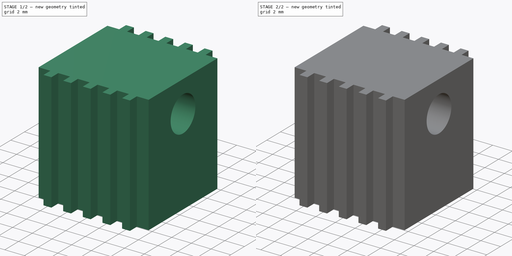
[diagram: build sequence overview — one tinted view per stage of 2, left to right]
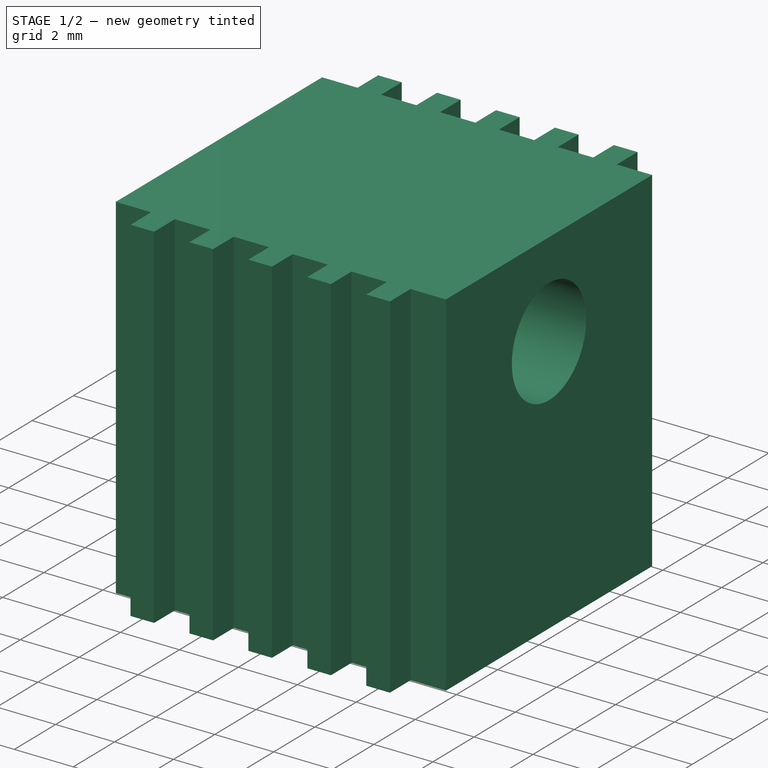
[diagram: stage 1 of 2 — iso view after this stage's code; geometry added in this stage tinted green]
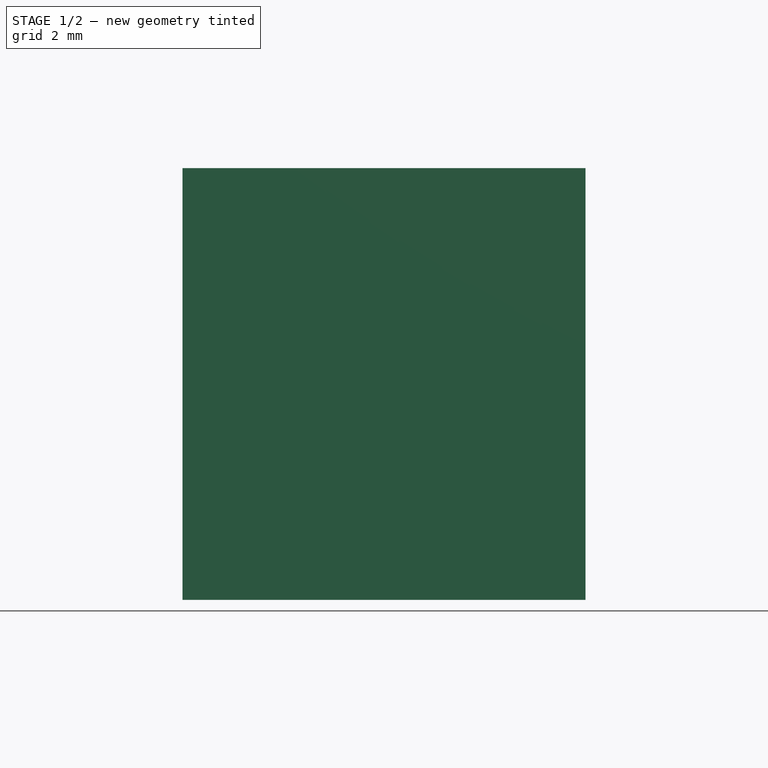
[diagram: stage 1 of 2 — front view after this stage's code; geometry added in this stage tinted green]
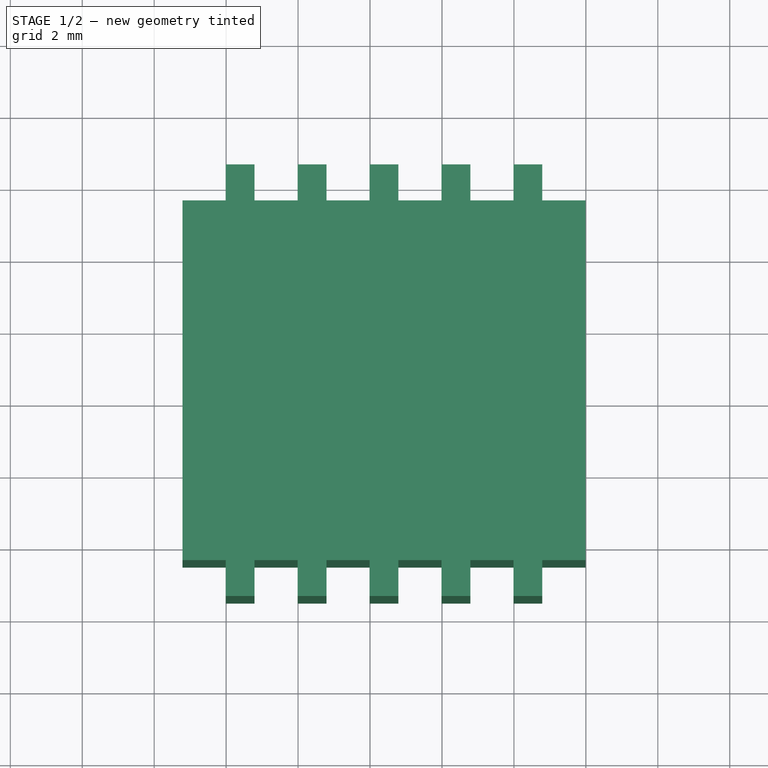
[diagram: stage 1 of 2 — top view after this stage's code; geometry added in this stage tinted green]
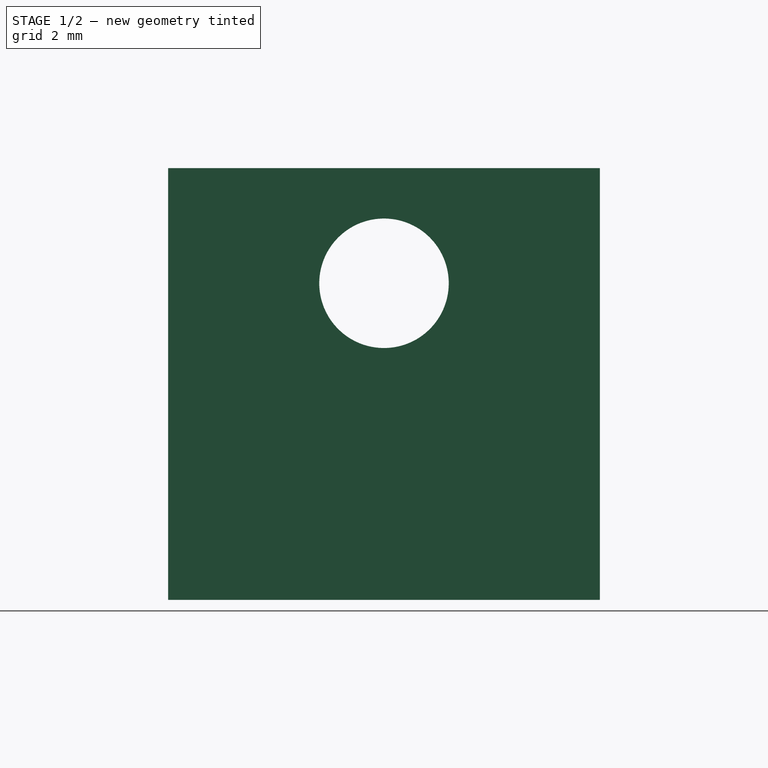
[diagram: stage 1 of 2 — right view after this stage's code; geometry added in this stage tinted green]
FCSTD DOCUMENT  (FreeCAD 0.16R6706 (Git))
Label: Regulador Correia Deslizante
License: All rights reserved
LicenseURL: http://en.wikipedia.org/wiki/All_rights_reserved
objects: Sketcher::SketchObject×3, PartDesign::Pocket×2, PartDesign::Pad×1
note: 9 computed .brp shape members not serialized (recipe doc carries the construction recipe); baked Part::Feature solids carry a one-line shape summary decoded from their .brp

FEATURE [Sketcher::SketchObject] Sketch
  sketch-geometry (44):
    g0: LineSegment StartX=-9.2116 StartY=11.5049 StartZ=0 EndX=-8.0116 EndY=11.5049 EndZ=0
    g1: LineSegment StartX=-8.0116 StartY=11.5049 StartZ=0 EndX=-8.0116 EndY=12.5049 EndZ=0
    g2: LineSegment StartX=-8.0116 StartY=12.5049 StartZ=0 EndX=-7.2116 EndY=12.5049 EndZ=0
    g3: LineSegment StartX=-7.2116 StartY=12.5049 StartZ=0 EndX=-7.2116 EndY=11.5049 EndZ=0
    g4: LineSegment StartX=-9.2116 StartY=1.50492 StartZ=0 EndX=-8.0116 EndY=1.50492 EndZ=0
    g5: LineSegment StartX=-8.0116 StartY=1.50492 StartZ=0 EndX=-8.0116 EndY=0.50492 EndZ=0
    g6: LineSegment StartX=-8.0116 StartY=0.50492 StartZ=0 EndX=-7.2116 EndY=0.50492 EndZ=0
    g7: LineSegment StartX=-7.2116 StartY=0.50492 StartZ=0 EndX=-7.2116 EndY=1.50492 EndZ=0
    g8: LineSegment StartX=-7.2116 StartY=11.5049 StartZ=0 EndX=-6.0116 EndY=11.5049 EndZ=0
    g9: LineSegment StartX=-6.0116 StartY=11.5049 StartZ=0 EndX=-6.0116 EndY=12.5049 EndZ=0
    g10: LineSegment StartX=-6.0116 StartY=12.5049 StartZ=0 EndX=-5.2116 EndY=12.5049 EndZ=0
    g11: LineSegment StartX=-5.2116 StartY=12.5049 StartZ=0 EndX=-5.2116 EndY=11.5049 EndZ=0
    g12: LineSegment StartX=-7.2116 StartY=1.50492 StartZ=0 EndX=-6.0116 EndY=1.50492 EndZ=0
    g13: LineSegment StartX=-6.0116 StartY=1.50492 StartZ=0 EndX=-6.0116 EndY=0.50492 EndZ=0
    g14: LineSegment StartX=-6.0116 StartY=0.50492 StartZ=0 EndX=-5.2116 EndY=0.50492 EndZ=0
    g15: LineSegment StartX=-5.2116 StartY=0.50492 StartZ=0 EndX=-5.2116 EndY=1.50492 EndZ=0
    g16: LineSegment StartX=-5.2116 StartY=11.5049 StartZ=0 EndX=-4.0116 EndY=11.5049 EndZ=0
    g17: LineSegment StartX=-4.0116 StartY=11.5049 StartZ=0 EndX=-4.0116 EndY=12.5049 EndZ=0
    g18: LineSegment StartX=-4.0116 StartY=12.5049 StartZ=0 EndX=-3.2116 EndY=12.5049 EndZ=0
    g19: LineSegment StartX=-3.2116 StartY=12.5049 StartZ=0 EndX=-3.2116 EndY=11.5049 EndZ=0
    g20: LineSegment StartX=-5.2116 StartY=1.50492 StartZ=0 EndX=-4.0116 EndY=1.50492 EndZ=0
    g21: LineSegment StartX=-4.0116 StartY=1.50492 StartZ=0 EndX=-4.0116 EndY=0.50492 EndZ=0
    g22: LineSegment StartX=-4.0116 StartY=0.50492 StartZ=0 EndX=-3.2116 EndY=0.50492 EndZ=0
    g23: LineSegment StartX=-3.2116 StartY=0.50492 StartZ=0 EndX=-3.2116 EndY=1.50492 EndZ=0
    g24: LineSegment StartX=-3.2116 StartY=11.5049 StartZ=0 EndX=-2.0116 EndY=11.5049 EndZ=0
    g25: LineSegment StartX=-2.0116 StartY=11.5049 StartZ=0 EndX=-2.0116 EndY=12.5049 EndZ=0
    g26: LineSegment StartX=-2.0116 StartY=12.5049 StartZ=0 EndX=-1.2116 EndY=12.5049 EndZ=0
    g27: LineSegment StartX=-1.2116 StartY=12.5049 StartZ=0 EndX=-1.2116 EndY=11.5049 EndZ=0
    g28: LineSegment StartX=-3.2116 StartY=1.50492 StartZ=0 EndX=-2.0116 EndY=1.50492 EndZ=0
    g29: LineSegment StartX=-2.0116 StartY=1.50492 StartZ=0 EndX=-2.0116 EndY=0.50492 EndZ=0
    g30: LineSegment StartX=-2.0116 StartY=0.50492 StartZ=0 EndX=-1.2116 EndY=0.50492 EndZ=0
    g31: LineSegment StartX=-1.2116 StartY=0.50492 StartZ=0 EndX=-1.2116 EndY=1.50492 EndZ=0
    g32: LineSegment StartX=-1.2116 StartY=11.5049 StartZ=0 EndX=-0.0116007 EndY=11.5049 EndZ=0
    g33: LineSegment StartX=-0.0116007 StartY=11.5049 StartZ=0 EndX=-0.0116007 EndY=12.5049 EndZ=0
    g34: LineSegment StartX=-0.0116007 StartY=12.5049 StartZ=0 EndX=0.788399 EndY=12.5049 EndZ=0
    g35: LineSegment StartX=0.788399 StartY=12.5049 StartZ=0 EndX=0.788399 EndY=11.5049 EndZ=0
    g36: LineSegment StartX=-1.2116 StartY=1.50492 StartZ=0 EndX=-0.0116007 EndY=1.50492 EndZ=0
    g37: LineSegment StartX=-0.0116007 StartY=1.50492 StartZ=0 EndX=-0.0116007 EndY=0.50492 EndZ=0
    g38: LineSegment StartX=-0.0116007 StartY=0.50492 StartZ=0 EndX=0.788399 EndY=0.50492 EndZ=0
    g39: LineSegment StartX=0.788399 StartY=0.50492 StartZ=0 EndX=0.788399 EndY=1.50492 EndZ=0
    g40: LineSegment StartX=0.788399 StartY=11.5049 StartZ=0 EndX=1.9884 EndY=11.5049 EndZ=0
    g41: LineSegment StartX=0.788399 StartY=1.50492 StartZ=0 EndX=1.9884 EndY=1.50492 EndZ=0
    g42: LineSegment StartX=-9.2116 StartY=11.5049 StartZ=0 EndX=-9.2116 EndY=1.50492 EndZ=0
    g43: LineSegment StartX=1.9884 StartY=11.5049 StartZ=0 EndX=1.9884 EndY=1.50492 EndZ=0
  constraints (130):
    c: Coincident(g0,g1)
    c: Coincident(g1,g2)
    c: Coincident(g2,g3)
    c: Horizontal(g0)
    c: Horizontal(g2)
    c: Vertical(g1)
    c: Vertical(g3)
    c: DistanceX(g0,g0) = 1.2
    c: DistanceX(g2,g2) = 0.8
    c: Equal(g1,g3)
    c: DistanceY(g1,g1) = 1
    c: Coincident(g4,g5)
    c: Coincident(g5,g6)
    c: Coincident(g6,g7)
    c: Horizontal(g4)
    c: Horizontal(g6)
    c: Vertical(g5)
    c: Vertical(g7)
    c: Equal(g0,g4)
    c: Equal(g2,g6)
    c: Equal(g1,g5)
    c: Equal(g5,g7)
    c: Coincident(g8,g9)
    c: Coincident(g9,g10)
    c: Coincident(g10,g11)
    c: Horizontal(g8)
    c: Horizontal(g10)
    c: Vertical(g9)
    c: Vertical(g11)
    c: Equal(g0,g8) = 1.2
    c: Equal(g2,g10) = 0.8
    c: Equal(g9,g11)
    c: Equal(g1,g9) = 1
    c: Coincident(g12,g13)
    c: Coincident(g13,g14)
    c: Coincident(g14,g15)
    c: Horizontal(g12)
    c: Horizontal(g14)
    c: Vertical(g13)
    c: Vertical(g15)
    c: Equal(g8,g12)
    c: Equal(g10,g14)
    c: Equal(g9,g13)
    c: Equal(g13,g15)
    c: Coincident(g16,g17)
    c: Coincident(g17,g18)
    c: Coincident(g18,g19)
    c: Horizontal(g16)
    c: Horizontal(g18)
    c: Vertical(g17)
    c: Vertical(g19)
    c: Equal(g0,g16) = 1.2
    c: Equal(g2,g18) = 0.8
    c: Equal(g17,g19)
    c: Equal(g1,g17) = 1
    c: Coincident(g20,g21)
    c: Coincident(g21,g22)
    c: Coincident(g22,g23)
    c: Horizontal(g20)
    c: Horizontal(g22)
    c: Vertical(g21)
    c: Vertical(g23)
    c: Equal(g16,g20)
    c: Equal(g18,g22)
    c: Equal(g17,g21)
    c: Equal(g21,g23)
    c: Coincident(g24,g25)
    c: Coincident(g25,g26)
    c: Coincident(g26,g27)
    c: Horizontal(g24)
    c: Horizontal(g26)
    c: Vertical(g25)
    c: Vertical(g27)
    c: Equal(g0,g24) = 1.2
    c: Equal(g2,g26) = 0.8
    c: Equal(g25,g27)
    c: Equal(g1,g25) = 1
    c: Coincident(g28,g29)
    c: Coincident(g29,g30)
    c: Coincident(g30,g31)
    c: Horizontal(g28)
    c: Horizontal(g30)
    c: Vertical(g29)
    c: Vertical(g31)
    c: Equal(g24,g28)
    c: Equal(g26,g30)
    c: Equal(g25,g29)
    c: Equal(g29,g31)
    c: Coincident(g32,g33)
    c: Coincident(g33,g34)
    c: Coincident(g34,g35)
    c: Horizontal(g32)
    c: Horizontal(g34)
    c: Vertical(g33)
    c: Vertical(g35)
    c: Equal(g0,g32) = 1.2
    c: Equal(g2,g34) = 0.8
    c: Equal(g33,g35)
    c: Equal(g1,g33) = 1
    c: Coincident(g36,g37)
    c: Coincident(g37,g38)
    c: Coincident(g38,g39)
    c: Horizontal(g36)
    c: Horizontal(g38)
    c: Vertical(g37)
    c: Vertical(g39)
    c: Equal(g32,g36)
    c: Equal(g34,g38)
    c: Equal(g33,g37)
    c: Equal(g37,g39)
    c: Horizontal(g40)
    c: Equal(g0,g40) = 1.2
    c: Horizontal(g41)
    c: Equal(g40,g41)
    c: Coincident(g3,g8)
    c: Coincident(g11,g16)
    c: Coincident(g19,g24)
    c: Coincident(g27,g32)
    c: Coincident(g35,g40)
    c: Coincident(g39,g41)
    c: Coincident(g31,g36)
    c: Coincident(g23,g28)
    c: Coincident(g15,g20)
    c: Coincident(g7,g12)
    c: Vertical(g42)
    c: Coincident(g0,g42)
    c: Coincident(g4,g42)
    c: DistanceY(g42,g42) = 10
    c: Coincident(g40,g43)
    c: Coincident(g41,g43)
FEATURE [PartDesign::Pad] Pad
  Length = 12
  Length2 = 100
  Sketch = -> Sketch
  Type = 0
FEATURE [Sketcher::SketchObject] Sketch001
  ExternalGeometry = -> [Pad]
  Placement = pos=(-9.2116,0,0) rot=(0.57735,-0.57735,-0.57735;2.0944rad)
  Support = -> Pad [Face80]
  sketch-geometry (2):
    g0: LineSegment [constr] StartX=-6.50492 StartY=12 StartZ=0 EndX=-6.50492 EndY=8.8 EndZ=0
    g1: Circle CenterX=-6.50492 CenterY=8.8 CenterZ=0 NormalX=0 NormalY=0 NormalZ=1 Radius=1.8
  constraints (5):
    c: Symmetric(g-3,g-3,g0)
    c: Vertical(g0)
    c: DistanceY(g0,g0) = 3.2
    c: Coincident(g1,g0)
    c: Radius(g1) = 1.8
FEATURE [PartDesign::Pocket] Pocket
  Length = 5
  Sketch = -> Sketch001
  Type = 1
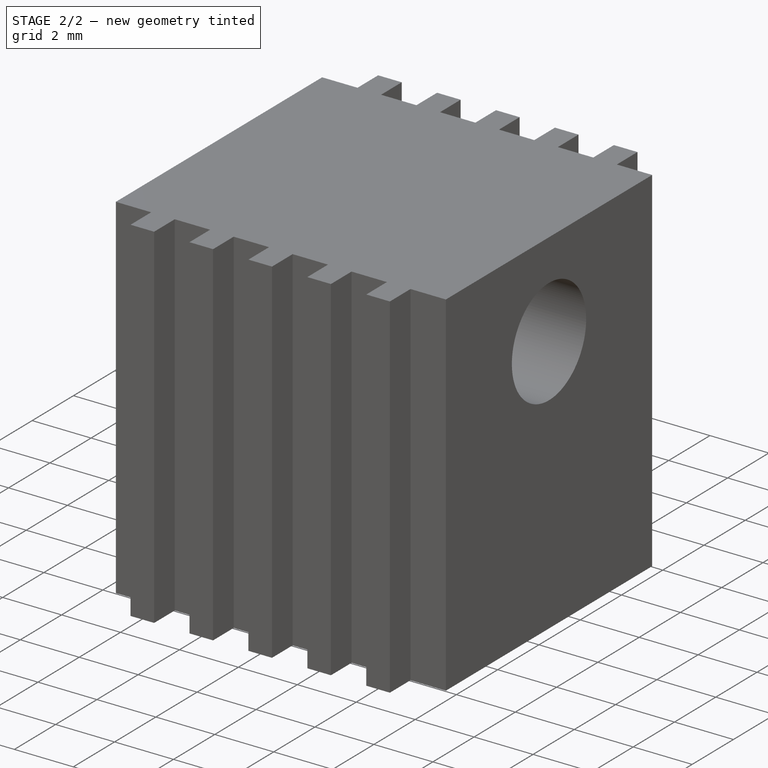
[diagram: stage 2 of 2 — iso view after this stage's code; geometry added in this stage tinted green]
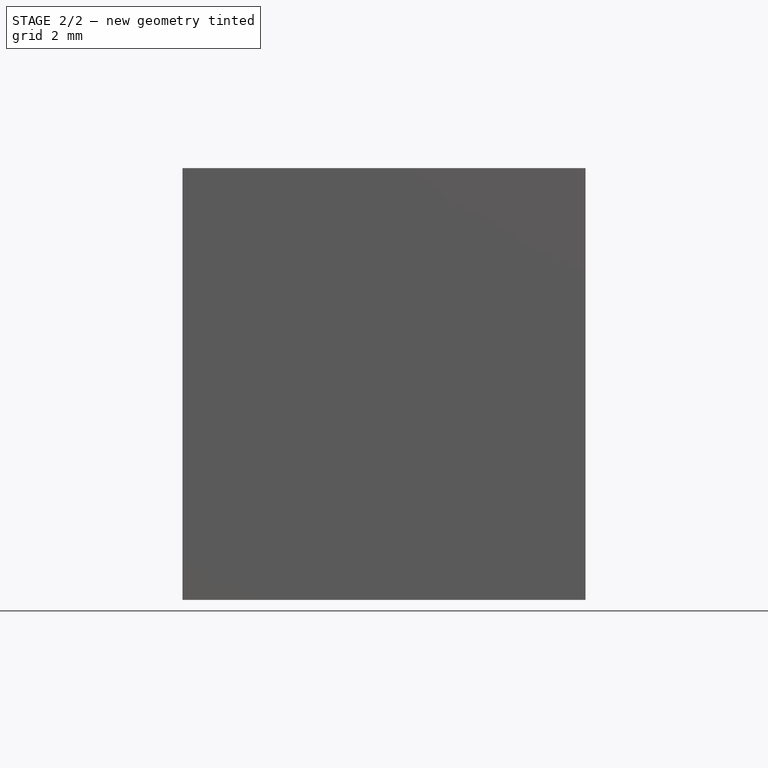
[diagram: stage 2 of 2 — front view after this stage's code; geometry added in this stage tinted green]
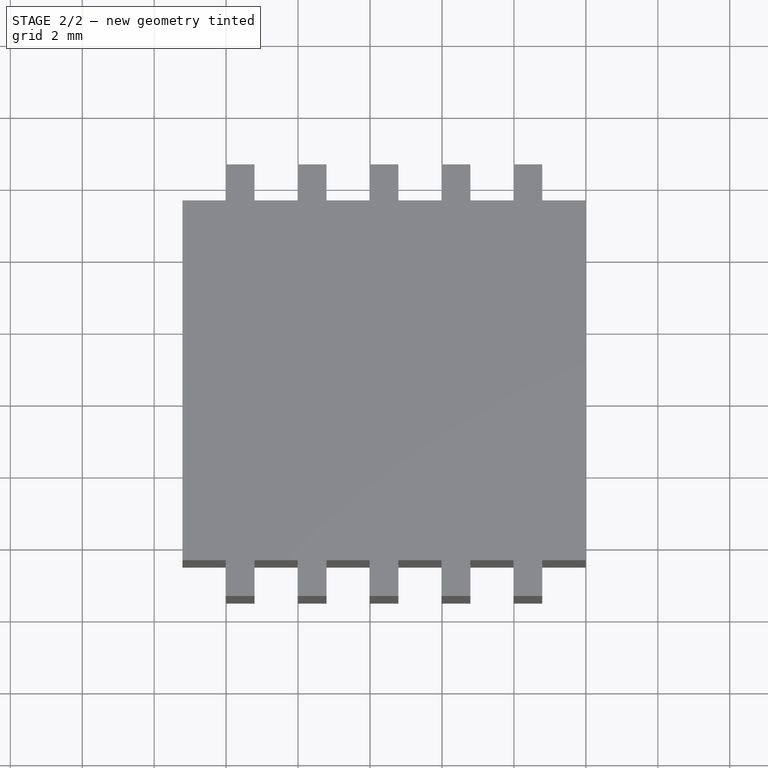
[diagram: stage 2 of 2 — top view after this stage's code; geometry added in this stage tinted green]
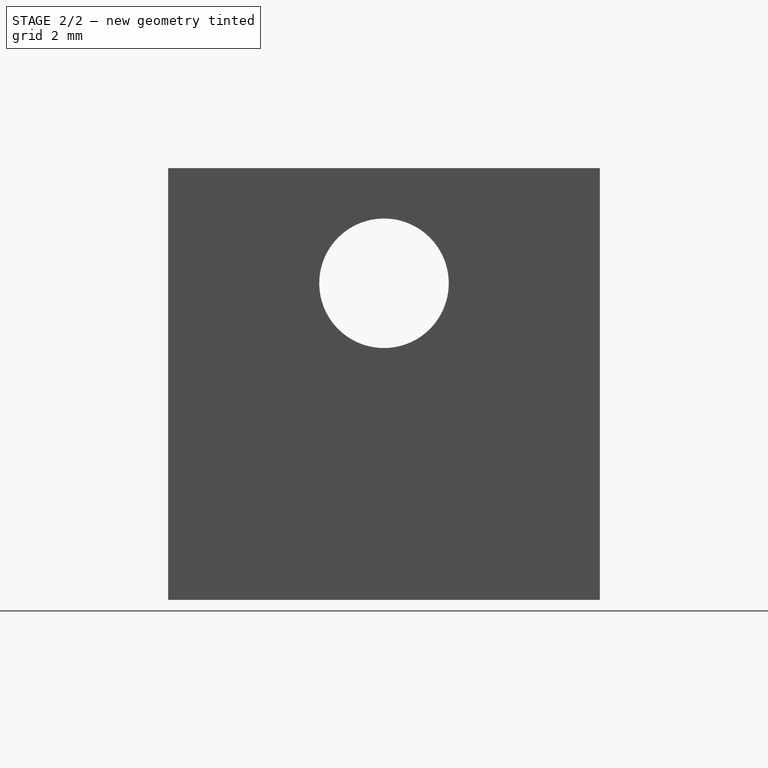
[diagram: stage 2 of 2 — right view after this stage's code; geometry added in this stage tinted green]
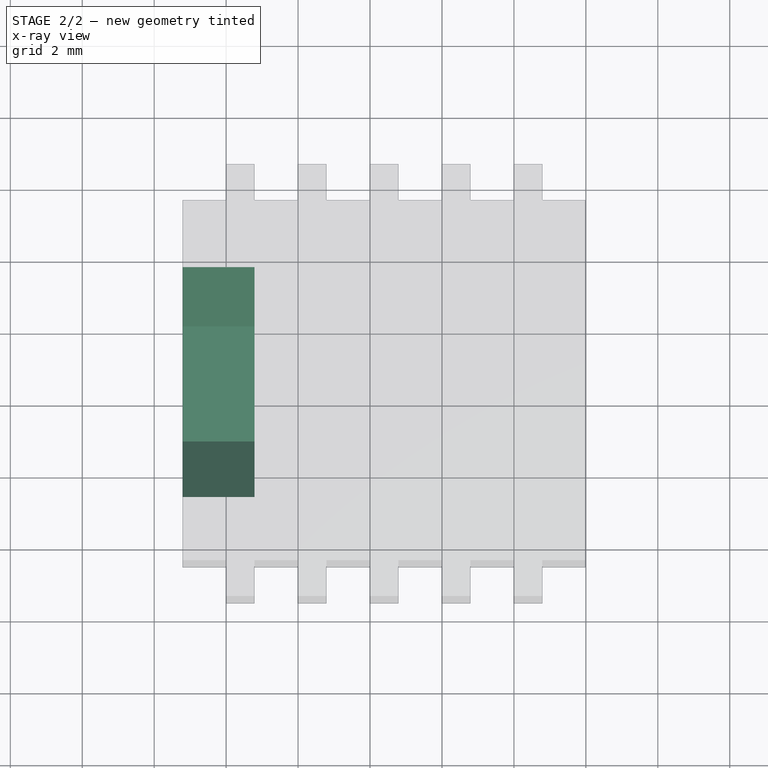
[diagram: stage 2 of 2 — x-ray composite at the top view; earlier geometry ghosted, this stage's added geometry solid]
FEATURE [Sketcher::SketchObject] Sketch002
  ExternalGeometry = -> [Pocket]
  Placement = pos=(-7.2116,0,0) rot=(0.57735,0.57735,0.57735;2.0944rad)
  Support = -> Pocket [Face45]
  sketch-geometry (8):
    g0: LineSegment [constr] StartX=6.50492 StartY=12 StartZ=0 EndX=6.50492 EndY=8.8 EndZ=0
    g1: LineSegment StartX=8.10492 StartY=6.02872 StartZ=0 EndX=9.70492 EndY=8.8 EndZ=0
    g2: LineSegment StartX=9.70492 StartY=8.8 StartZ=0 EndX=8.10492 EndY=11.5713 EndZ=0
    g3: LineSegment StartX=8.10492 StartY=11.5713 StartZ=0 EndX=4.90492 EndY=11.5713 EndZ=0
    g4: LineSegment StartX=4.90492 StartY=11.5713 StartZ=0 EndX=3.30492 EndY=8.8 EndZ=0
    g5: LineSegment StartX=3.30492 StartY=8.8 StartZ=0 EndX=4.90492 EndY=6.02872 EndZ=0
    g6: LineSegment StartX=4.90492 StartY=6.02872 StartZ=0 EndX=8.10492 EndY=6.02872 EndZ=0
    g7: Circle [constr] CenterX=6.50492 CenterY=8.8 CenterZ=0 NormalX=0 NormalY=0 NormalZ=1 Radius=3.2
  constraints (19):
    c: Vertical(g0)
    c: DistanceY(g0,g0) = 3.2
    c: Coincident(g1,g2)
    c: Coincident(g2,g3)
    c: Coincident(g3,g4)
    c: Coincident(g4,g5)
    c: Coincident(g5,g6)
    c: Coincident(g6,g1)
    c: Equal(g1, g2-g6) x5
    c: PointOnObject(g2,g7)
    c: PointOnObject(g3,g7)
    c: PointOnObject(g4,g7)
    c: PointOnObject(g5,g7)
    c: PointOnObject(g6,g7)
    c: Radius(g7) = 3.2
    c: Coincident(g0,g7)
    c: Perpendicular(g0,g3)
    c: PointOnObject(g1,g7)
    c: Symmetric(g-3,g-3,g0)
FEATURE [PartDesign::Pocket] Pocket001
  Length = 3
  Sketch = -> Sketch002
  Type = 0
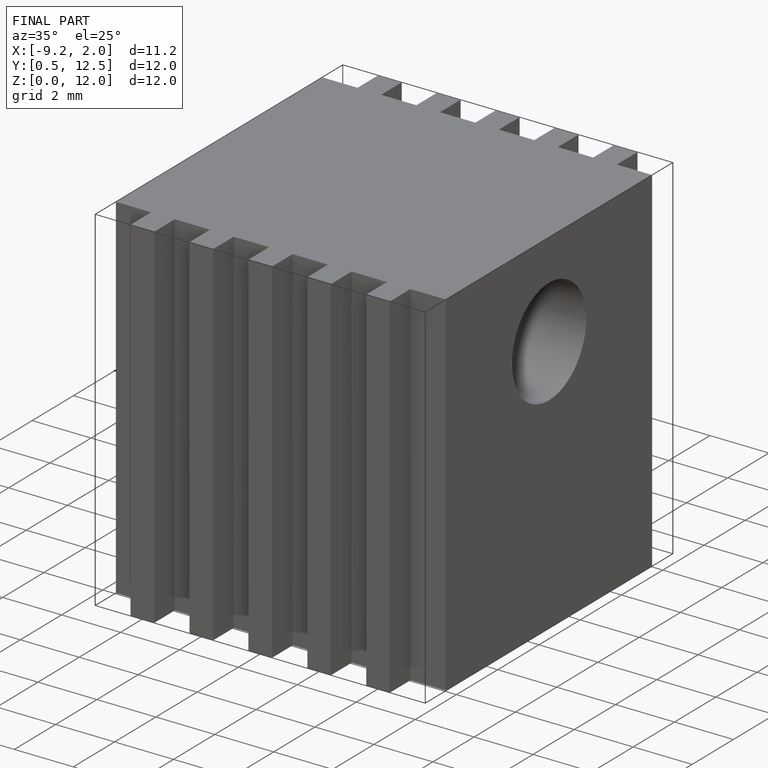
[diagram: finished part — iso view with bounding-box wireframe]
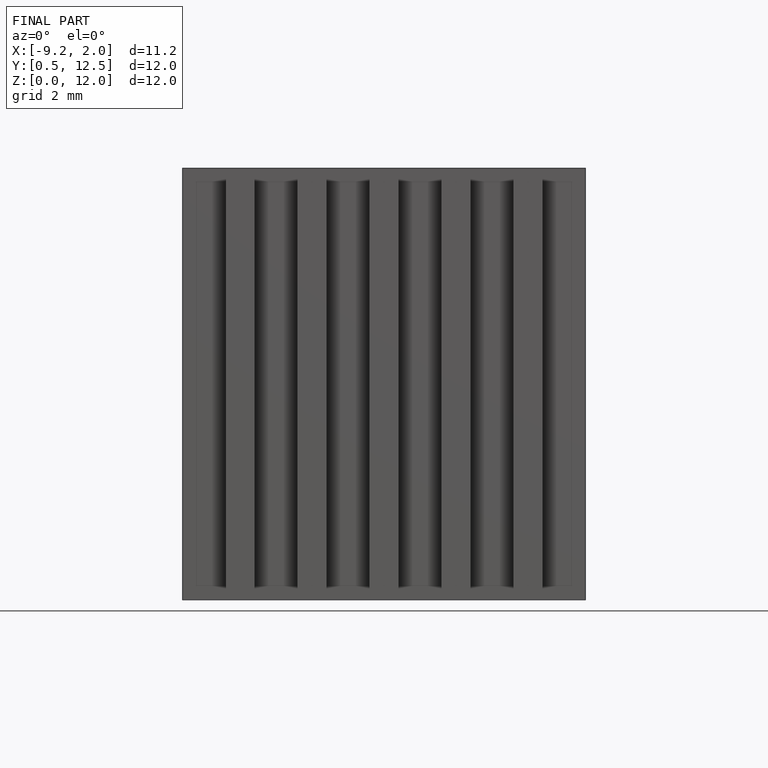
[diagram: finished part — front view with bounding-box wireframe]
